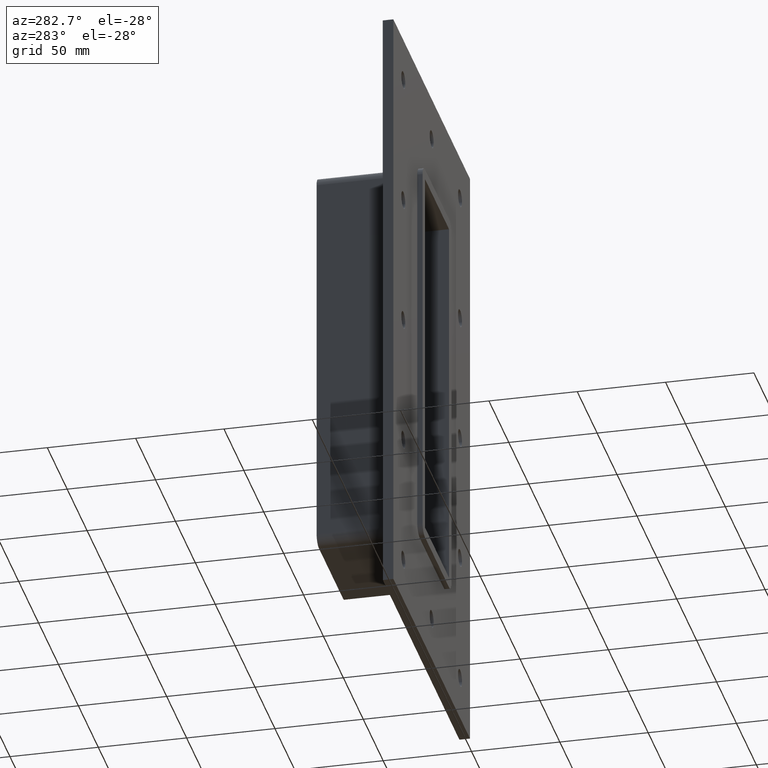
[diagram: clean part render]
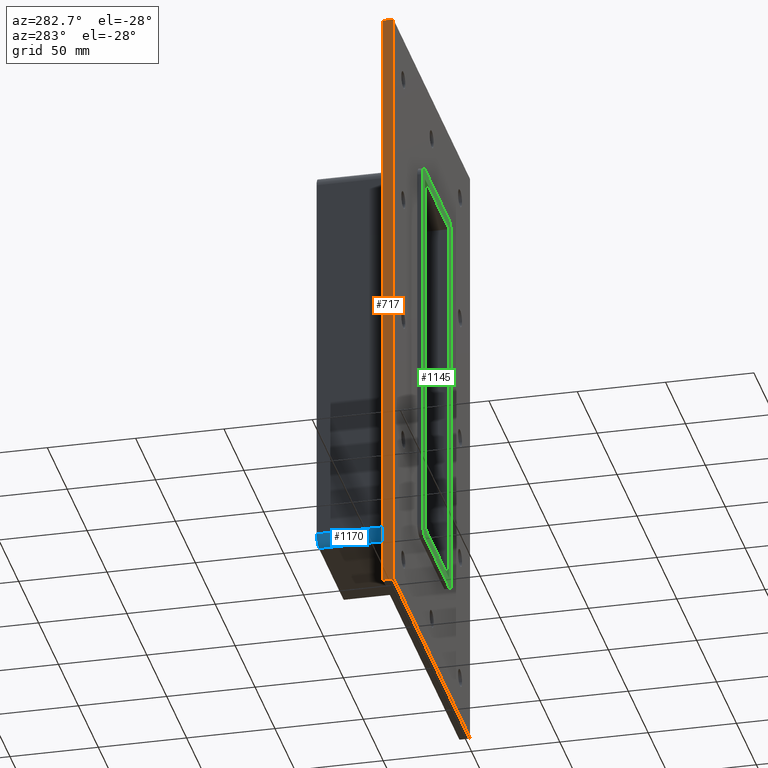
[diagram: same view with three faces highlighted in distinct colors, each labeled with its STEP entity id]
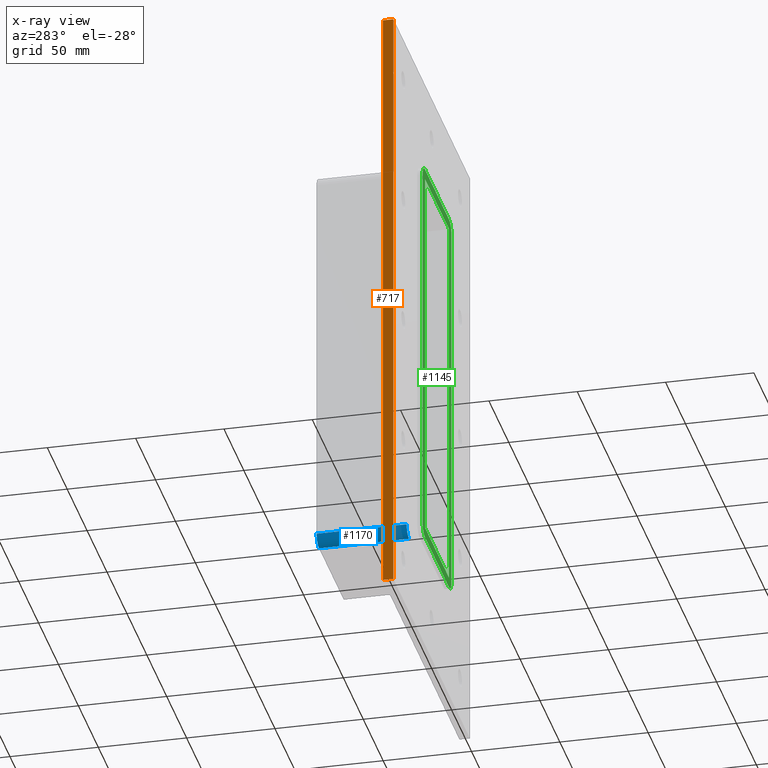
[diagram: x-ray of the same camera — body ghosted, the three highlighted faces saturated]
A machine part, auxiliary view with three faces highlighted in distinct colors.
The next image is the same camera in x-ray (body ghosted, the three faces saturated) — at least one of them is partly hidden behind the body in this view.
Their STEP definitions:

[orange] entity #717 — the highlighted planar face has unit normal (-1, 0, 0).
#409=CARTESIAN_POINT('',(-96.25,6.000000000000001,175.0));
#410=VERTEX_POINT('',#409);
#427=CARTESIAN_POINT('',(-96.25,6.000000000000001,-175.0));
#428=VERTEX_POINT('',#427);
#435=CARTESIAN_POINT('',(-96.25,6.000000000000001,-175.0));
#436=DIRECTION('',(0.0,0.0,1.0));
#437=VECTOR('',#436,350.0);
#438=LINE('',#435,#437);
#439=EDGE_CURVE('',#428,#410,#438,.T.);
#555=CARTESIAN_POINT('',(-96.25,0.0,175.0));
#556=VERTEX_POINT('',#555);
#565=CARTESIAN_POINT('',(-96.25,0.0,-175.0));
#566=VERTEX_POINT('',#565);
#567=CARTESIAN_POINT('',(-96.25,0.0,-175.0));
#568=DIRECTION('',(0.0,0.0,1.0));
#569=VECTOR('',#568,350.0);
#570=LINE('',#567,#569);
#571=EDGE_CURVE('',#566,#556,#570,.T.);
#696=CARTESIAN_POINT('',(-96.25,0.0,-175.0));
#697=DIRECTION('',(-1.0,0.0,0.0));
#698=DIRECTION('',(0.0,0.0,1.0));
#699=AXIS2_PLACEMENT_3D('',#696,#697,#698);
#700=PLANE('',#699);
#701=ORIENTED_EDGE('',*,*,#571,.T.);
#702=CARTESIAN_POINT('',(-96.25,0.0,175.0));
#703=DIRECTION('',(0.0,1.0,0.0));
#704=VECTOR('',#703,6.000000000000001);
#705=LINE('',#702,#704);
#706=EDGE_CURVE('',#556,#410,#705,.T.);
#707=ORIENTED_EDGE('',*,*,#706,.T.);
#708=ORIENTED_EDGE('',*,*,#439,.F.);
#709=CARTESIAN_POINT('',(-96.25,0.0,-175.0));
#710=DIRECTION('',(0.0,1.0,0.0));
#711=VECTOR('',#710,6.000000000000001);
#712=LINE('',#709,#711);
#713=EDGE_CURVE('',#566,#428,#712,.T.);
#714=ORIENTED_EDGE('',*,*,#713,.F.);
#715=EDGE_LOOP('',(#701,#707,#708,#714));
#716=FACE_OUTER_BOUND('',#715,.T.);
#717=ADVANCED_FACE('',(#716),#700,.T.);

[blue] entity #1170 — the highlighted cylindrical surface (edge-blend (fillet) strip) has radius 6 mm, axis along (0, 1, 0).
#479=CARTESIAN_POINT('',(-30.250000000000004,6.000000000000001,-115.0));
#480=VERTEX_POINT('',#479);
#481=CARTESIAN_POINT('',(-36.250000000000007,6.000000000000001,-108.99999999999999));
#482=VERTEX_POINT('',#481);
#483=CARTESIAN_POINT('',(-30.250000000000004,6.000000000000001,-108.99999999999999));
#484=DIRECTION('',(0.0,1.0,0.0));
#485=DIRECTION('',(-0.707106781186546,0.0,-0.707106781186549));
#486=AXIS2_PLACEMENT_3D('',#483,#484,#485);
#487=CIRCLE('',#486,6.000000000000001);
#488=EDGE_CURVE('',#480,#482,#487,.T.);
#1045=CARTESIAN_POINT('',(-30.25,57.0,-115.0));
#1046=VERTEX_POINT('',#1045);
#1047=CARTESIAN_POINT('',(-30.250000000000004,57.0,-115.0));
#1048=DIRECTION('',(0.0,-1.0,0.0));
#1049=VECTOR('',#1048,51.0);
#1050=LINE('',#1047,#1049);
#1051=EDGE_CURVE('',#1046,#480,#1050,.T.);
#1146=CARTESIAN_POINT('',(-30.250000000000004,0.0,-108.99999999999999));
#1147=DIRECTION('',(0.0,1.0,0.0));
#1148=DIRECTION('',(-0.707106781186546,0.0,-0.707106781186549));
#1149=AXIS2_PLACEMENT_3D('',#1146,#1147,#1148);
#1150=CYLINDRICAL_SURFACE('',#1149,6.000000000000001);
#1151=ORIENTED_EDGE('',*,*,#488,.T.);
#1152=CARTESIAN_POINT('',(-36.250000000000007,57.0,-108.99999999999999));
#1153=VERTEX_POINT('',#1152);
#1154=CARTESIAN_POINT('',(-36.250000000000007,6.000000000000001,-108.99999999999999));
#1155=DIRECTION('',(0.0,1.0,0.0));
#1156=VECTOR('',#1155,51.0);
#1157=LINE('',#1154,#1156);
#1158=EDGE_CURVE('',#482,#1153,#1157,.T.);
#1159=ORIENTED_EDGE('',*,*,#1158,.T.);
#1160=CARTESIAN_POINT('',(-30.250000000000004,57.0,-108.99999999999999));
#1161=DIRECTION('',(0.0,-1.0,0.0));
#1162=DIRECTION('',(-0.707106781186546,0.0,-0.707106781186549));
#1163=AXIS2_PLACEMENT_3D('',#1160,#1161,#1162);
#1164=CIRCLE('',#1163,6.000000000000001);
#1165=EDGE_CURVE('',#1153,#1046,#1164,.T.);
#1166=ORIENTED_EDGE('',*,*,#1165,.T.);
#1167=ORIENTED_EDGE('',*,*,#1051,.T.);
#1168=EDGE_LOOP('',(#1151,#1159,#1166,#1167));
#1169=FACE_OUTER_BOUND('',#1168,.T.);
#1170=ADVANCED_FACE('',(#1169),#1150,.T.);

[green] entity #1145 — the highlighted planar face has unit normal (0, 1, 0).
#769=CARTESIAN_POINT('',(-30.250000000000004,-3.0,-109.0));
#770=VERTEX_POINT('',#769);
#787=CARTESIAN_POINT('',(-30.250000000000004,-3.0,109.0));
#788=VERTEX_POINT('',#787);
#795=CARTESIAN_POINT('',(-30.250000000000004,-3.0,-109.0));
#796=DIRECTION('',(0.0,0.0,1.0));
#797=VECTOR('',#796,218.0);
#798=LINE('',#795,#797);
#799=EDGE_CURVE('',#770,#788,#798,.T.);
#810=CARTESIAN_POINT('',(30.25,-3.0,115.0));
#811=VERTEX_POINT('',#810);
#818=CARTESIAN_POINT('',(36.250000000000007,-3.0,109.0));
#819=VERTEX_POINT('',#818);
#820=CARTESIAN_POINT('',(30.250000000000004,-3.0,109.0));
#821=DIRECTION('',(0.0,1.0,0.0));
#822=DIRECTION('',(0.707106781186548,0.0,0.707106781186547));
#823=AXIS2_PLACEMENT_3D('',#820,#821,#822);
#824=CIRCLE('',#823,6.0);
#825=EDGE_CURVE('',#811,#819,#824,.T.);
#875=CARTESIAN_POINT('',(36.250000000000007,-3.0,-108.99999999999999));
#876=VERTEX_POINT('',#875);
#877=CARTESIAN_POINT('',(36.250000000000007,-3.0,-109.0));
#878=DIRECTION('',(0.0,0.0,1.0));
#879=VECTOR('',#878,218.0);
#880=LINE('',#877,#879);
#881=EDGE_CURVE('',#876,#819,#880,.T.);
#922=CARTESIAN_POINT('',(-30.250000000000004,-3.0,115.0));
#923=VERTEX_POINT('',#922);
#930=CARTESIAN_POINT('',(30.249999999999993,-3.0,115.0));
#931=DIRECTION('',(-1.0,0.0,0.0));
#932=VECTOR('',#931,60.5);
#933=LINE('',#930,#932);
#934=EDGE_CURVE('',#811,#923,#933,.T.);
#947=CARTESIAN_POINT('',(30.250000000000004,-3.0,-115.0));
#948=VERTEX_POINT('',#947);
#949=CARTESIAN_POINT('',(30.250000000000004,-3.0,-108.99999999999999));
#950=DIRECTION('',(0.0,1.0,0.0));
#951=DIRECTION('',(0.707106781186546,0.0,-0.707106781186549));
#952=AXIS2_PLACEMENT_3D('',#949,#950,#951);
#953=CIRCLE('',#952,6.000000000000001);
#954=EDGE_CURVE('',#876,#948,#953,.T.);
#996=CARTESIAN_POINT('',(-36.250000000000007,-3.0,108.99999999999999));
#997=VERTEX_POINT('',#996);
#1004=CARTESIAN_POINT('',(-30.250000000000004,-3.0,108.99999999999999));
#1005=DIRECTION('',(0.0,1.0,0.0));
#1006=DIRECTION('',(-0.707106781186546,0.0,0.707106781186549));
#1007=AXIS2_PLACEMENT_3D('',#1004,#1005,#1006);
#1008=CIRCLE('',#1007,6.000000000000001);
#1009=EDGE_CURVE('',#997,#923,#1008,.T.);
#1022=CARTESIAN_POINT('',(-30.25,-3.0,-115.0));
#1023=VERTEX_POINT('',#1022);
#1024=CARTESIAN_POINT('',(-30.249999999999993,-3.0,-115.0));
#1025=DIRECTION('',(1.0,0.0,0.0));
#1026=VECTOR('',#1025,60.5);
#1027=LINE('',#1024,#1026);
#1028=EDGE_CURVE('',#1023,#948,#1027,.T.);
#1069=CARTESIAN_POINT('',(-36.250000000000007,-3.0,-108.99999999999999));
#1070=VERTEX_POINT('',#1069);
#1077=CARTESIAN_POINT('',(-36.250000000000007,-3.0,109.0));
#1078=DIRECTION('',(0.0,0.0,-1.0));
#1079=VECTOR('',#1078,218.0);
#1080=LINE('',#1077,#1079);
#1081=EDGE_CURVE('',#997,#1070,#1080,.T.);
#1094=CARTESIAN_POINT('',(-30.250000000000004,-3.0,-108.99999999999999));
#1095=DIRECTION('',(0.0,1.0,0.0));
#1096=DIRECTION('',(-0.707106781186546,0.0,-0.707106781186549));
#1097=AXIS2_PLACEMENT_3D('',#1094,#1095,#1096);
#1098=CIRCLE('',#1097,6.000000000000001);
#1099=EDGE_CURVE('',#1023,#1070,#1098,.T.);
#1105=CARTESIAN_POINT('',(0.0,-3.0,0.0));
#1106=DIRECTION('',(0.0,1.0,0.0));
#1107=DIRECTION('',(0.0,0.0,1.0));
#1108=AXIS2_PLACEMENT_3D('',#1105,#1106,#1107);
#1109=PLANE('',#1108);
#1110=ORIENTED_EDGE('',*,*,#954,.F.);
#1111=ORIENTED_EDGE('',*,*,#881,.T.);
#1112=ORIENTED_EDGE('',*,*,#825,.F.);
#1113=ORIENTED_EDGE('',*,*,#934,.T.);
#1114=ORIENTED_EDGE('',*,*,#1009,.F.);
#1115=ORIENTED_EDGE('',*,*,#1081,.T.);
#1116=ORIENTED_EDGE('',*,*,#1099,.F.);
#1117=ORIENTED_EDGE('',*,*,#1028,.T.);
#1118=EDGE_LOOP('',(#1110,#1111,#1112,#1113,#1114,#1115,#1116,#1117));
#1119=FACE_OUTER_BOUND('',#1118,.T.);
#1120=CARTESIAN_POINT('',(30.250000000000004,-3.0,109.0));
#1121=VERTEX_POINT('',#1120);
#1122=CARTESIAN_POINT('',(30.250000000000004,-3.0,-109.0));
#1123=VERTEX_POINT('',#1122);
#1124=CARTESIAN_POINT('',(30.250000000000004,-3.0,109.0));
#1125=DIRECTION('',(0.0,0.0,-1.0));
#1126=VECTOR('',#1125,218.0);
#1127=LINE('',#1124,#1126);
#1128=EDGE_CURVE('',#1121,#1123,#1127,.T.);
#1129=ORIENTED_EDGE('',*,*,#1128,.T.);
#1130=CARTESIAN_POINT('',(30.250000000000004,-3.0,-109.0));
#1131=DIRECTION('',(-1.0,0.0,0.0));
#1132=VECTOR('',#1131,60.500000000000014);
#1133=LINE('',#1130,#1132);
#1134=EDGE_CURVE('',#1123,#770,#1133,.T.);
#1135=ORIENTED_EDGE('',*,*,#1134,.T.);
#1136=ORIENTED_EDGE('',*,*,#799,.T.);
#1137=CARTESIAN_POINT('',(-30.250000000000004,-3.0,109.0));
#1138=DIRECTION('',(1.0,0.0,0.0));
#1139=VECTOR('',#1138,60.500000000000014);
#1140=LINE('',#1137,#1139);
#1141=EDGE_CURVE('',#788,#1121,#1140,.T.);
#1142=ORIENTED_EDGE('',*,*,#1141,.T.);
#1143=EDGE_LOOP('',(#1129,#1135,#1136,#1142));
#1144=FACE_BOUND('',#1143,.T.);
#1145=ADVANCED_FACE('',(#1119,#1144),#1109,.F.);